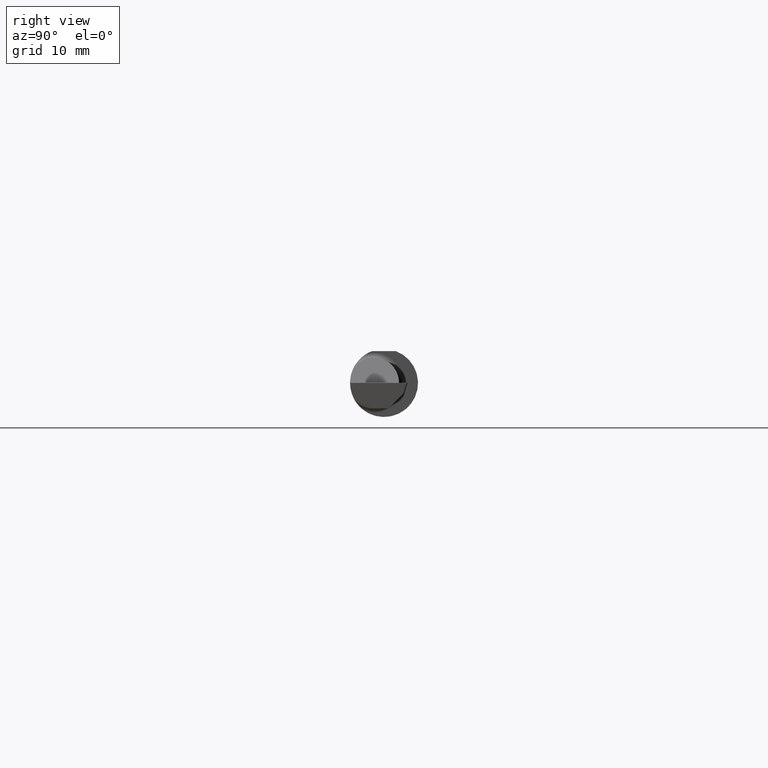
[diagram: clean part render]
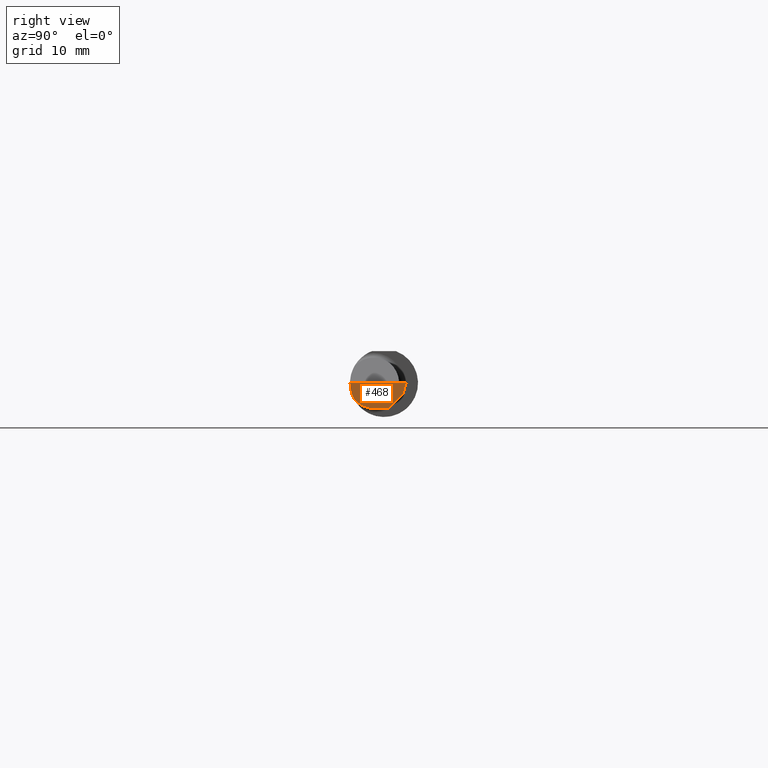
[diagram: same view with one face highlighted and labeled with its STEP entity id]
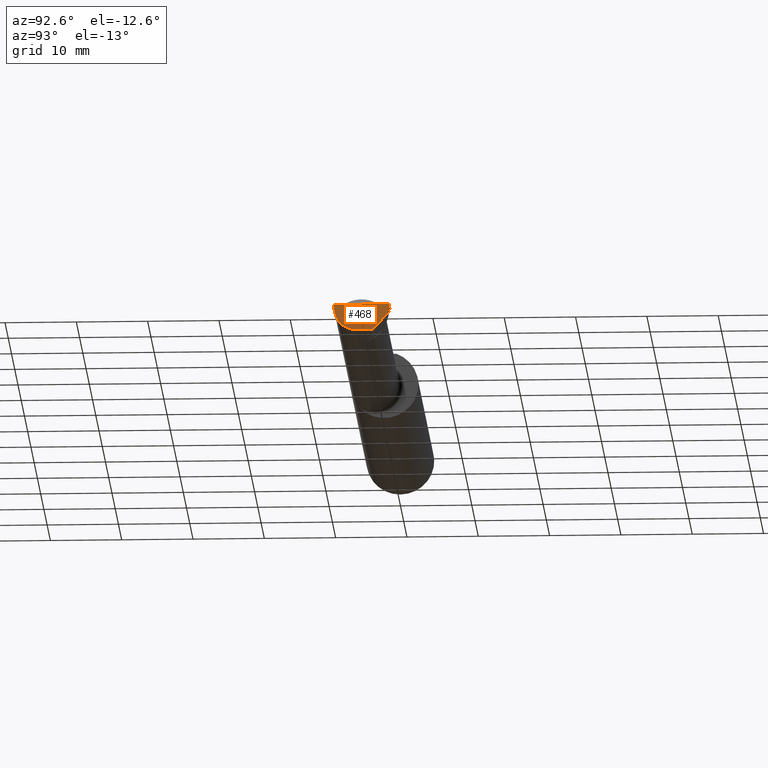
[diagram: same view with one face highlighted and labeled with its STEP entity id]
A machine part, right view. The second image highlights one B-rep face of the part: STEP entity #468.
A second angle (auxiliary view) of the same face is appended — the face is thin or edge-on in the first view.
In plain terms, the highlighted planar face has unit normal (-0.9922, 0.026, 0.1219).
Its self-contained STEP definition (entity closure, byte-faithful):
#10 = CARTESIAN_POINT ( 'NONE',  ( 3.991786964307025620, 0.1037103972642544891, -0.06112352112763067696 ) ) ;
#33 = ORIENTED_EDGE ( 'NONE', *, *, #193, .T. ) ;
#50 = VERTEX_POINT ( 'NONE', #230 ) ;
#55 = CARTESIAN_POINT ( 'NONE',  ( 3.977873865042411250, -0.05739999999999999963, -0.1400500000000000633 ) ) ;
#59 = ORIENTED_EDGE ( 'NONE', *, *, #81, .T. ) ;
#66 = CARTESIAN_POINT ( 'NONE',  ( 3.977873865042411250, -0.05739999999999999963, -0.1400500000000000633 ) ) ;
#68 = VERTEX_POINT ( 'NONE', #10 ) ;
#70 = LINE ( 'NONE', #625, #210 ) ;
#81 = EDGE_CURVE ( 'NONE', #208, #94, #182, .T. ) ;
#85 = DIRECTION ( 'NONE',  ( -0.1053106618240643999, -0.6976485211320200275, -0.7086580314005358483 ) ) ;
#86 = DIRECTION ( 'NONE',  ( -0.02617694830779389997, -0.9996573249755593693, -8.535148296544462419E-17 ) ) ;
#94 = VERTEX_POINT ( 'NONE', #55 ) ;
#107 = CARTESIAN_POINT ( 'NONE',  ( 3.977925907309857845, -0.1365595166907234981, -0.1227499502647109025 ) ) ;
#108 = ORIENTED_EDGE ( 'NONE', *, *, #400, .F. ) ;
#119 = FACE_OUTER_BOUND ( 'NONE', #711, .T. ) ;
#129 = DIRECTION ( 'NONE',  ( 0.1240019227988278100, 0.3022330132596598440, 0.9451342385281467084 ) ) ;
#167 = EDGE_CURVE ( 'NONE', #68, #608, #70, .T. ) ;
#182 =( BOUNDED_CURVE ( )  B_SPLINE_CURVE ( 3, ( #617, #107, #406, #66 ),
 .UNSPECIFIED., .F., .F. ) 
 B_SPLINE_CURVE_WITH_KNOTS ( ( 4, 4 ),
 ( 5.632580117768156036, 6.493234751459283416 ),
 .UNSPECIFIED. ) 
 CURVE ( )  GEOMETRIC_REPRESENTATION_ITEM ( )  RATIONAL_B_SPLINE_CURVE ( ( 1.000000000000000000, 0.9392195014330944058, 0.9392195014330944058, 1.000000000000000000 ) ) 
 REPRESENTATION_ITEM ( '' )  );
#193 = EDGE_CURVE ( 'NONE', #68, #50, #678, .T. ) ;
#208 = VERTEX_POINT ( 'NONE', #235 ) ;
#210 = VECTOR ( 'NONE', #85, 39.37007874015748854 ) ;
#230 = CARTESIAN_POINT ( 'NONE',  ( 3.999806390372749654, 0.1232563466314185591, -1.707108835695200937E-16 ) ) ;
#235 = CARTESIAN_POINT ( 'NONE',  ( 3.981080296960509024, -0.1635956445993029806, -0.09130436773856190347 ) ) ;
#272 = EDGE_CURVE ( 'NONE', #704, #50, #634, .T. ) ;
#332 = ORIENTED_EDGE ( 'NONE', *, *, #272, .F. ) ;
#337 = VECTOR ( 'NONE', #86, 39.37007874015748143 ) ;
#345 = CARTESIAN_POINT ( 'NONE',  ( 3.975850273311265060, -0.1244607267090814540, -0.1422282308645909932 ) ) ;
#363 = CARTESIAN_POINT ( 'NONE',  ( 3.990039159128060398, -0.2497391662021650749, -1.698694533788567331E-16 ) ) ;
#368 = CARTESIAN_POINT ( 'NONE',  ( 3.984117089522338340, -0.1792580844883770730, -0.06324101202936152633 ) ) ;
#372 = ORIENTED_EDGE ( 'NONE', *, *, #380, .F. ) ;
#373 = CARTESIAN_POINT ( 'NONE',  ( 3.977889026591898691, -0.05682100378451883371, -0.1400500000000000633 ) ) ;
#380 = EDGE_CURVE ( 'NONE', #208, #704, #701, .T. ) ;
#400 = EDGE_CURVE ( 'NONE', #608, #94, #543, .T. ) ;
#406 = CARTESIAN_POINT ( 'NONE',  ( 3.976787929832031221, -0.09887019258091177265, -0.1400500000000001188 ) ) ;
#417 = ORIENTED_EDGE ( 'NONE', *, *, #167, .F. ) ;
#430 = CARTESIAN_POINT ( 'NONE',  ( 3.981080296960509024, -0.1635956445993029806, -0.09130436773856190347 ) ) ;
#447 = DIRECTION ( 'NONE',  ( -0.9922060308645607174, 0.02598182930461492499, 0.1218693434050601432 ) ) ;
#452 = PLANE ( 'NONE',  #472 ) ;
#465 = CARTESIAN_POINT ( 'NONE',  ( 3.973485289289538702, 0.05910326325063192804, -0.2006176458236217652 ) ) ;
#468 = ADVANCED_FACE ( 'NONE', ( #119 ), #452, .F. ) ;
#472 = AXIS2_PLACEMENT_3D ( 'NONE', #345, #447, #712 ) ;
#518 = CARTESIAN_POINT ( 'NONE',  ( 3.991672876940992154, -0.1873499999999999888, -1.700101953615524951E-16 ) ) ;
#524 = VECTOR ( 'NONE', #579, 39.37007874015748143 ) ;
#543 = LINE ( 'NONE', #373, #337 ) ;
#568 = CARTESIAN_POINT ( 'NONE',  ( 3.980058035321255794, 0.02601009779168082098, -0.1400500000000000911 ) ) ;
#579 = DIRECTION ( 'NONE',  ( 0.02617694830779388956, 0.9996573249755593693, -2.255099122137419725E-18 ) ) ;
#586 = CARTESIAN_POINT ( 'NONE',  ( 3.987725449370724373, -0.1873499999999999888, -0.03213820089768524429 ) ) ;
#608 = VERTEX_POINT ( 'NONE', #568 ) ;
#617 = CARTESIAN_POINT ( 'NONE',  ( 3.981080296960509024, -0.1635956445993029806, -0.09130436773856190347 ) ) ;
#625 = CARTESIAN_POINT ( 'NONE',  ( 3.987166985808005659, 0.07310455820032707441, -0.09221234738244912799 ) ) ;
#634 = LINE ( 'NONE', #363, #524 ) ;
#649 = CARTESIAN_POINT ( 'NONE',  ( 3.991672876940992154, -0.1873499999999999888, -1.700101953615524951E-16 ) ) ;
#678 = LINE ( 'NONE', #465, #692 ) ;
#692 = VECTOR ( 'NONE', #129, 39.37007874015748854 ) ;
#701 =( BOUNDED_CURVE ( )  B_SPLINE_CURVE ( 3, ( #430, #368, #586, #649 ),
 .UNSPECIFIED., .F., .F. ) 
 B_SPLINE_CURVE_WITH_KNOTS ( ( 4, 4 ),
 ( 0.8516985021657640376, 1.360746882515199152 ),
 .UNSPECIFIED. ) 
 CURVE ( )  GEOMETRIC_REPRESENTATION_ITEM ( )  RATIONAL_B_SPLINE_CURVE ( ( 1.000000000000000000, 0.9785221379938656705, 0.9785221379938656705, 1.000000000000000000 ) ) 
 REPRESENTATION_ITEM ( '' )  );
#704 = VERTEX_POINT ( 'NONE', #518 ) ;
#711 = EDGE_LOOP ( 'NONE', ( #417, #33, #332, #372, #59, #108 ) ) ;
#712 = DIRECTION ( 'NONE',  ( 0.1219104985251952683, 0.000000000000000000, 0.9925410975618785825 ) ) ;